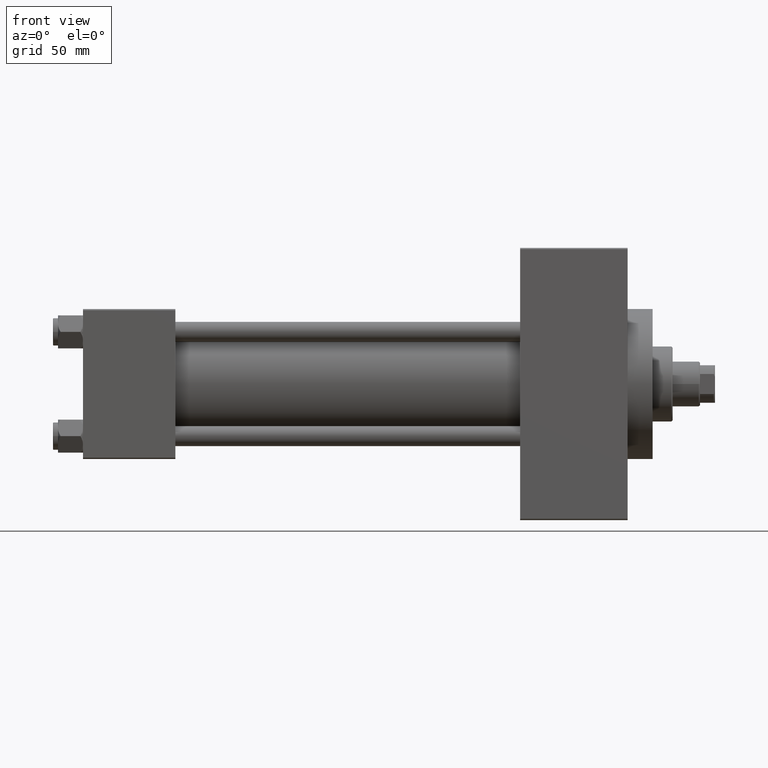
[diagram: clean part render]
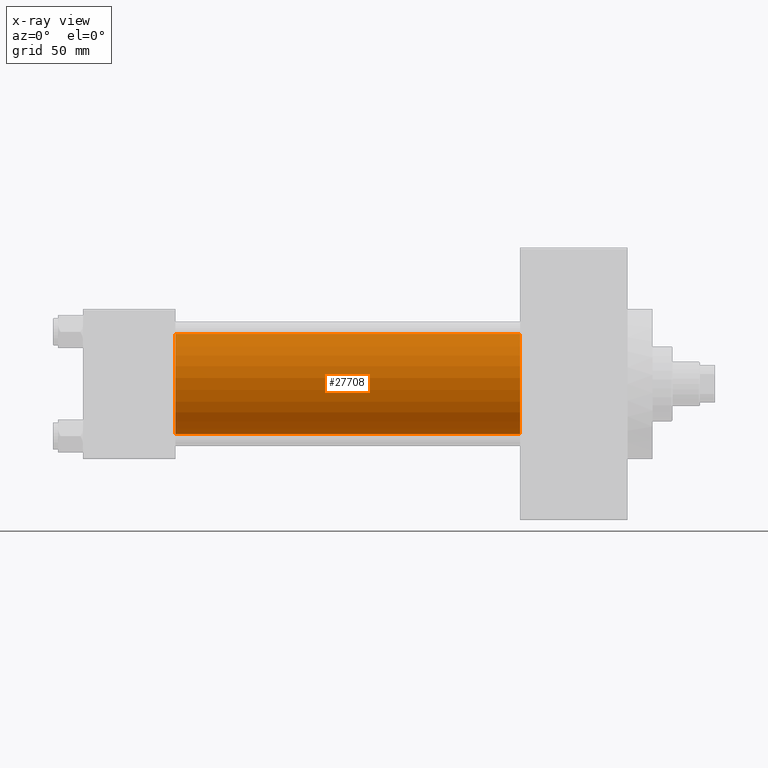
[diagram: x-ray — body ghosted, one internal face saturated and labeled with its STEP entity id]
A machine part, front view, then the same camera in x-ray: the body is ghosted and one INTERNAL B-rep face — a face not visible from any outside direction — is saturated and labeled: STEP entity #27708.
In plain terms, the highlighted cylindrical surface (partial cylindrical patch) has radius 20 mm, axis along (-1, -0, -0).
Its self-contained STEP definition (entity closure, byte-faithful):
#37 = AXIS2_PLACEMENT_3D ( 'NONE', #5969, #38600, #42433 ) ;
#1993 = CARTESIAN_POINT ( 'NONE',  ( 37.00000000000000000, -1.527916156705042519E-16, -20.00000000000000000 ) ) ;
#3885 = AXIS2_PLACEMENT_3D ( 'NONE', #43440, #32414, #10588 ) ;
#5969 = CARTESIAN_POINT ( 'NONE',  ( 175.0000000000000284, -2.602085213965210642E-15, 0.000000000000000000 ) ) ;
#6879 = ORIENTED_EDGE ( 'NONE', *, *, #12385, .T. ) ;
#8850 = ORIENTED_EDGE ( 'NONE', *, *, #34976, .T. ) ;
#9811 = VERTEX_POINT ( 'NONE', #1993 ) ;
#10371 = VECTOR ( 'NONE', #43759, 1000.000000000000000 ) ;
#10588 = DIRECTION ( 'NONE',  ( 0.000000000000000000, 0.000000000000000000, -1.000000000000000000 ) ) ;
#11035 = DIRECTION ( 'NONE',  ( 0.000000000000000000, 0.000000000000000000, 1.000000000000000000 ) ) ;
#11145 = CARTESIAN_POINT ( 'NONE',  ( 175.0000000000000284, -1.527916156705042519E-16, -20.00000000000000000 ) ) ;
#11696 = DIRECTION ( 'NONE',  ( -1.000000000000000000, -0.000000000000000000, -0.000000000000000000 ) ) ;
#12385 = EDGE_CURVE ( 'NONE', #17620, #9811, #21214, .T. ) ;
#17620 = VERTEX_POINT ( 'NONE', #24852 ) ;
#19354 = CARTESIAN_POINT ( 'NONE',  ( 175.0000000000000284, -2.602085213965210642E-15, 20.00000000000000000 ) ) ;
#20623 = ORIENTED_EDGE ( 'NONE', *, *, #29457, .F. ) ;
#21214 = LINE ( 'NONE', #11145, #10371 ) ;
#23040 = EDGE_LOOP ( 'NONE', ( #8850, #6879, #40015, #20623 ) ) ;
#24852 = CARTESIAN_POINT ( 'NONE',  ( 175.0000000000000284, -1.527916156705042519E-16, -20.00000000000000000 ) ) ;
#25658 = DIRECTION ( 'NONE',  ( -1.000000000000000000, -0.000000000000000000, -0.000000000000000000 ) ) ;
#27708 = ADVANCED_FACE ( 'NONE', ( #28544 ), #43885, .F. ) ;
#28544 = FACE_OUTER_BOUND ( 'NONE', #23040, .T. ) ;
#29457 = EDGE_CURVE ( 'NONE', #33441, #46204, #36182, .T. ) ;
#32414 = DIRECTION ( 'NONE',  ( 1.000000000000000000, 0.000000000000000000, 0.000000000000000000 ) ) ;
#33441 = VERTEX_POINT ( 'NONE', #42488 ) ;
#34539 = CIRCLE ( 'NONE', #37, 20.00000000000000000 ) ;
#34976 = EDGE_CURVE ( 'NONE', #33441, #17620, #34539, .T. ) ;
#35784 = EDGE_CURVE ( 'NONE', #46204, #9811, #39125, .T. ) ;
#36182 = LINE ( 'NONE', #19354, #47354 ) ;
#38600 = DIRECTION ( 'NONE',  ( 1.000000000000000000, 0.000000000000000000, 0.000000000000000000 ) ) ;
#39107 = CARTESIAN_POINT ( 'NONE',  ( 37.00000000000000000, -2.602085213965210642E-15, 20.00000000000000000 ) ) ;
#39125 = CIRCLE ( 'NONE', #3885, 20.00000000000000000 ) ;
#40015 = ORIENTED_EDGE ( 'NONE', *, *, #35784, .F. ) ;
#42433 = DIRECTION ( 'NONE',  ( 0.000000000000000000, 0.000000000000000000, -1.000000000000000000 ) ) ;
#42488 = CARTESIAN_POINT ( 'NONE',  ( 175.0000000000000284, -2.602085213965210642E-15, 20.00000000000000000 ) ) ;
#43440 = CARTESIAN_POINT ( 'NONE',  ( 37.00000000000000000, -2.602085213965210642E-15, 0.000000000000000000 ) ) ;
#43459 = AXIS2_PLACEMENT_3D ( 'NONE', #47242, #25658, #11035 ) ;
#43759 = DIRECTION ( 'NONE',  ( -1.000000000000000000, -0.000000000000000000, -0.000000000000000000 ) ) ;
#43885 = CYLINDRICAL_SURFACE ( 'NONE', #43459, 20.00000000000000000 ) ;
#46204 = VERTEX_POINT ( 'NONE', #39107 ) ;
#47242 = CARTESIAN_POINT ( 'NONE',  ( 175.0000000000000284, -2.602085213965210642E-15, 0.000000000000000000 ) ) ;
#47354 = VECTOR ( 'NONE', #11696, 1000.000000000000000 ) ;